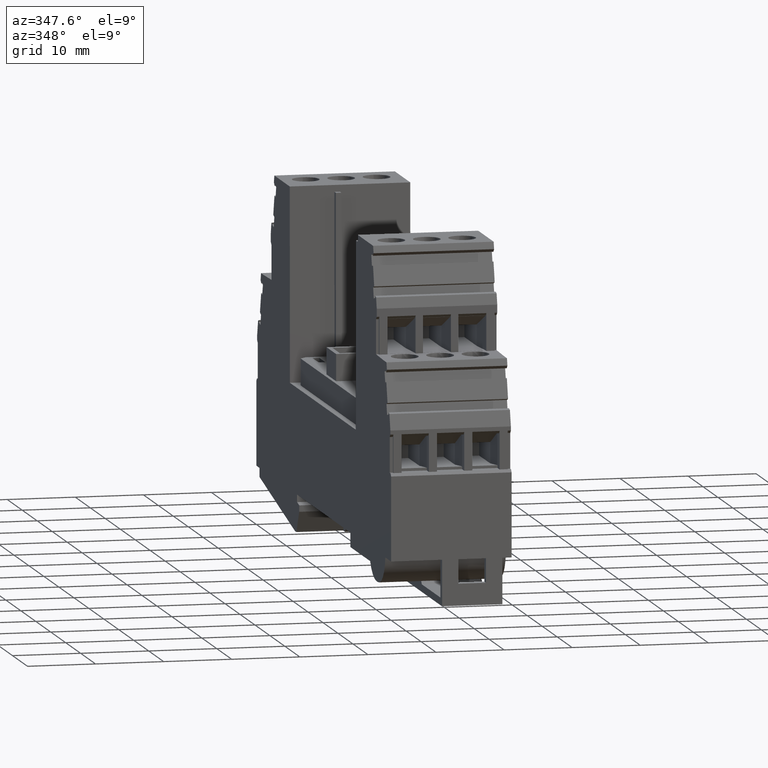
[diagram: clean part render]
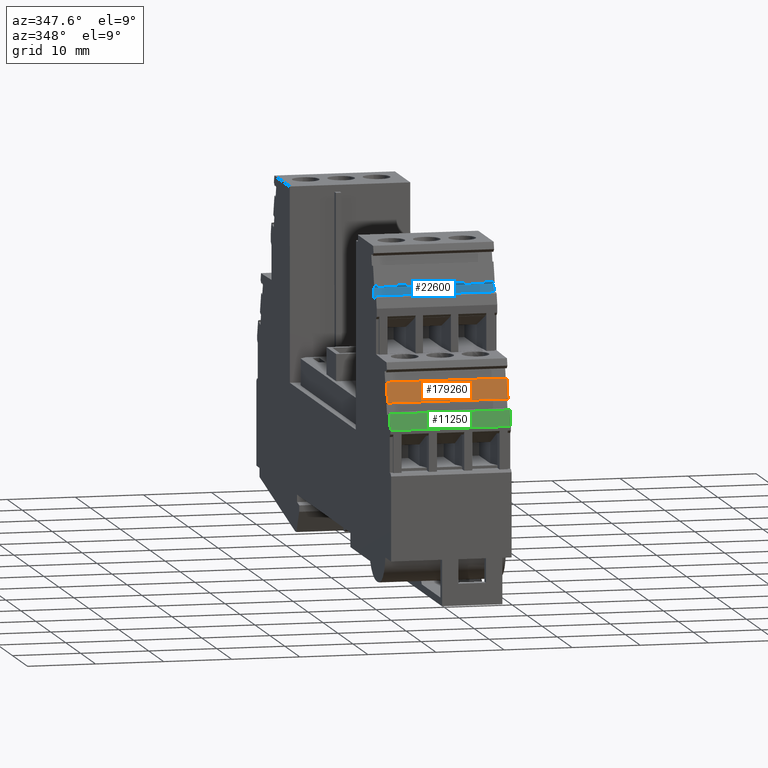
[diagram: same view with three faces highlighted in distinct colors, each labeled with its STEP entity id]
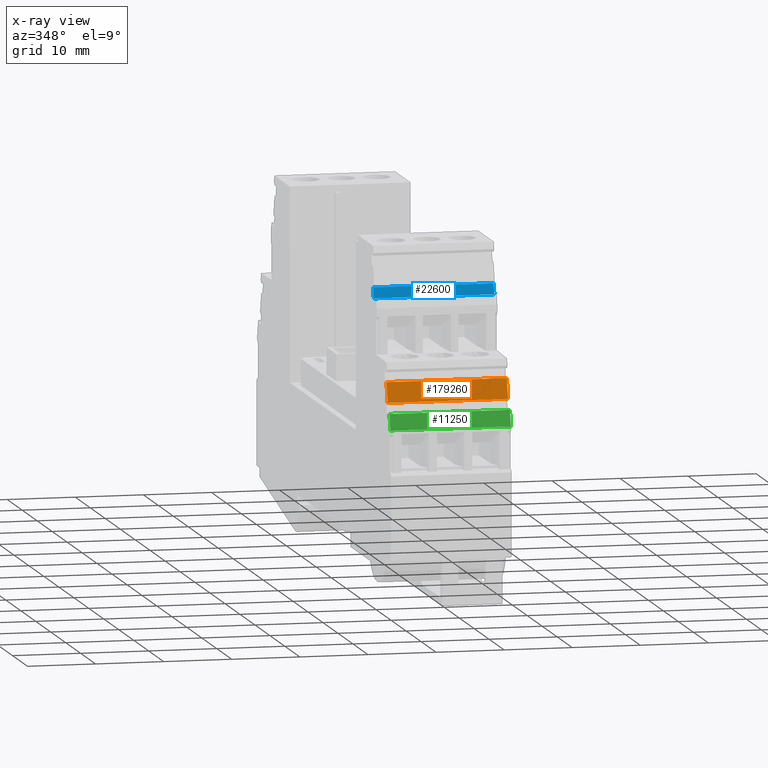
[diagram: x-ray of the same camera — body ghosted, the three highlighted faces saturated]
A machine part, auxiliary view with three faces highlighted in distinct colors.
The next image is the same camera in x-ray (body ghosted, the three faces saturated) — at least one of them is partly hidden behind the body in this view.
Their STEP definitions:

[orange] entity #179260 — the highlighted planar face has unit normal (0, 0.9646, -0.2639).
#7750=CARTESIAN_POINT('',(26.7373932870742,39.7117907254851,-37.3));
#7760=VERTEX_POINT('',#7750);
#7790=CARTESIAN_POINT('',(10.4841665504999,-19.6999999999998,-37.3));
#7800=DIRECTION('',(-0.263873049965391,-0.964557418457793,0.));
#7810=VECTOR('',#7800,1.);
#7820=LINE('',#7790,#7810);
#7830=CARTESIAN_POINT('',(27.5290124369703,42.6054629808585,-37.3));
#7840=VERTEX_POINT('',#7830);
#7850=EDGE_CURVE('',#7840,#7760,#7820,.T.);
#9590=CARTESIAN_POINT('',(27.5290124369703,42.6054629808585,-55.));
#9600=VERTEX_POINT('',#9590);
#9720=CARTESIAN_POINT('',(27.5290124369703,42.6054629808585,
-3.74999999990759));
#9730=DIRECTION('',(-1.22464679914735E-16,-7.51478429024827E-19,-1.));
#9740=VECTOR('',#9730,1.);
#9750=LINE('',#9720,#9740);
#9760=EDGE_CURVE('',#7840,#9600,#9750,.T.);
#9990=CARTESIAN_POINT('',(26.7373932870741,39.7117907254851,-55.));
#10000=VERTEX_POINT('',#9990);
#10030=CARTESIAN_POINT('',(26.7373932870741,39.7117907254851,
-3.74999999990759));
#10040=DIRECTION('',(-1.22464679914735E-16,-7.51478429024827E-19,-1.));
#10050=VECTOR('',#10040,1.);
#10060=LINE('',#10030,#10050);
#10070=EDGE_CURVE('',#7760,#10000,#10060,.T.);
#13840=CARTESIAN_POINT('',(21.4868784674602,20.5191410000002,-55.));
#13850=DIRECTION('',(0.263873049965391,0.964557418457793,
-2.3740895734514E-21));
#13860=VECTOR('',#13850,1.);
#13870=LINE('',#13840,#13860);
#13880=EDGE_CURVE('',#10000,#9600,#13870,.T.);
#179150=CARTESIAN_POINT('',(27.5048329268037,42.5170775776922,-55.));
#179160=DIRECTION('',(0.964557418457793,-0.263873049965391,
-1.17925920605767E-16));
#179170=DIRECTION('',(0.263873049965391,0.964557418457793,
-2.3740895734514E-21));
#179180=AXIS2_PLACEMENT_3D('',#179150,#179160,#179170);
#179190=PLANE('',#179180);
#179200=ORIENTED_EDGE('',*,*,#13880,.F.);
#179210=ORIENTED_EDGE('',*,*,#9760,.T.);
#179220=ORIENTED_EDGE('',*,*,#7850,.F.);
#179230=ORIENTED_EDGE('',*,*,#10070,.F.);
#179240=EDGE_LOOP('',(#179230,#179220,#179210,#179200));
#179250=FACE_OUTER_BOUND('',#179240,.T.);
#179260=ADVANCED_FACE('',(#179250),#179190,.F.);

[blue] entity #22600 — the highlighted planar face has unit normal (0, 0.9646, -0.2639).
#760=CARTESIAN_POINT('',(35.92212240535,53.4603092298248,-37.3));
#770=VERTEX_POINT('',#760);
#800=CARTESIAN_POINT('',(15.9077266177557,-19.6999999999998,-37.3));
#810=DIRECTION('',(-0.263873049965258,-0.96455741845783,0.));
#820=VECTOR('',#810,1.);
#830=LINE('',#800,#820);
#840=CARTESIAN_POINT('',(36.3434969255558,55.0005950584349,-37.3));
#850=VERTEX_POINT('',#840);
#860=EDGE_CURVE('',#850,#770,#830,.T.);
#20120=CARTESIAN_POINT('',(36.343496925556,55.0005950584348,-55.));
#20130=VERTEX_POINT('',#20120);
#20160=CARTESIAN_POINT('',(26.9104385347102,20.5191410000002,-55.));
#20170=DIRECTION('',(0.263873049965258,0.96455741845783,
-2.3740895734514E-21));
#20180=VECTOR('',#20170,1.);
#20190=LINE('',#20160,#20180);
#20200=CARTESIAN_POINT('',(35.92212240535,53.4603092298248,-55.));
#20210=VERTEX_POINT('',#20200);
#20220=EDGE_CURVE('',#20210,#20130,#20190,.T.);
#22390=CARTESIAN_POINT('',(36.2467788848893,54.6470534457698,-55.));
#22400=DIRECTION('',(0.964557418457829,-0.263873049965258,
-1.17925920605772E-16));
#22410=DIRECTION('',(0.263873049965258,0.96455741845783,
-2.3740895734514E-21));
#22420=AXIS2_PLACEMENT_3D('',#22390,#22400,#22410);
#22430=PLANE('',#22420);
#22440=ORIENTED_EDGE('',*,*,#20220,.F.);
#22450=CARTESIAN_POINT('',(36.3434969255558,55.0005950584349,
-3.74999999990759));
#22460=DIRECTION('',(1.22464679914735E-16,7.51478429024817E-19,1.));
#22470=VECTOR('',#22460,1.);
#22480=LINE('',#22450,#22470);
#22490=EDGE_CURVE('',#20130,#850,#22480,.T.);
#22500=ORIENTED_EDGE('',*,*,#22490,.F.);
#22510=ORIENTED_EDGE('',*,*,#860,.F.);
#22520=CARTESIAN_POINT('',(35.92212240535,53.4603092298247,
-3.74999999990759));
#22530=DIRECTION('',(1.22464679914735E-16,7.51478429024835E-19,1.));
#22540=VECTOR('',#22530,1.);
#22550=LINE('',#22520,#22540);
#22560=EDGE_CURVE('',#20210,#770,#22550,.T.);
#22570=ORIENTED_EDGE('',*,*,#22560,.T.);
#22580=EDGE_LOOP('',(#22570,#22510,#22500,#22440));
#22590=FACE_OUTER_BOUND('',#22580,.T.);
#22600=ADVANCED_FACE('',(#22590),#22430,.F.);

[green] entity #11250 — the highlighted planar face has unit normal (0, 0.9646, -0.2639).
#7270=CARTESIAN_POINT('',(24.8413513671894,36.002274730349,-37.3));
#7280=VERTEX_POINT('',#7270);
#7310=CARTESIAN_POINT('',(9.60293337169968,-19.6999999999998,-37.3));
#7320=DIRECTION('',(-0.263873049965441,-0.964557418457779,0.));
#7330=VECTOR('',#7320,1.);
#7340=LINE('',#7310,#7330);
#7350=CARTESIAN_POINT('',(25.4699411748279,38.3000120786842,-37.3));
#7360=VERTEX_POINT('',#7350);
#7370=EDGE_CURVE('',#7360,#7280,#7340,.T.);
#10950=CARTESIAN_POINT('',(25.4090023042563,38.0772570846066,-55.));
#10960=DIRECTION('',(0.964557418457779,-0.263873049965441,
-1.17925920605765E-16));
#10970=DIRECTION('',(0.263873049965441,0.964557418457779,
-2.3740895734514E-21));
#10980=AXIS2_PLACEMENT_3D('',#10950,#10960,#10970);
#10990=PLANE('',#10980);
#11000=CARTESIAN_POINT('',(20.6056452886625,20.5191410000002,-55.));
#11010=DIRECTION('',(0.263873049965441,0.964557418457779,
-2.3740895734514E-21));
#11020=VECTOR('',#11010,1.);
#11030=LINE('',#11000,#11020);
#11040=CARTESIAN_POINT('',(24.8413513671893,36.002274730349,-55.));
#11050=VERTEX_POINT('',#11040);
#11060=CARTESIAN_POINT('',(25.4699411748279,38.3000120786842,-55.));
#11070=VERTEX_POINT('',#11060);
#11080=EDGE_CURVE('',#11050,#11070,#11030,.T.);
#11090=ORIENTED_EDGE('',*,*,#11080,.F.);
#11100=CARTESIAN_POINT('',(25.4699411748279,38.3000120786842,
-3.74999999990759));
#11110=DIRECTION('',(-1.22464679914735E-16,-7.51478429024852E-19,-1.));
#11120=VECTOR('',#11110,1.);
#11130=LINE('',#11100,#11120);
#11140=EDGE_CURVE('',#7360,#11070,#11130,.T.);
#11150=ORIENTED_EDGE('',*,*,#11140,.T.);
#11160=ORIENTED_EDGE('',*,*,#7370,.F.);
#11170=CARTESIAN_POINT('',(24.8413513671893,36.002274730349,
-3.74999999990759));
#11180=DIRECTION('',(-1.22464679914735E-16,-7.51478429024846E-19,-1.));
#11190=VECTOR('',#11180,1.);
#11200=LINE('',#11170,#11190);
#11210=EDGE_CURVE('',#7280,#11050,#11200,.T.);
#11220=ORIENTED_EDGE('',*,*,#11210,.F.);
#11230=EDGE_LOOP('',(#11220,#11160,#11150,#11090));
#11240=FACE_OUTER_BOUND('',#11230,.T.);
#11250=ADVANCED_FACE('',(#11240),#10990,.F.);